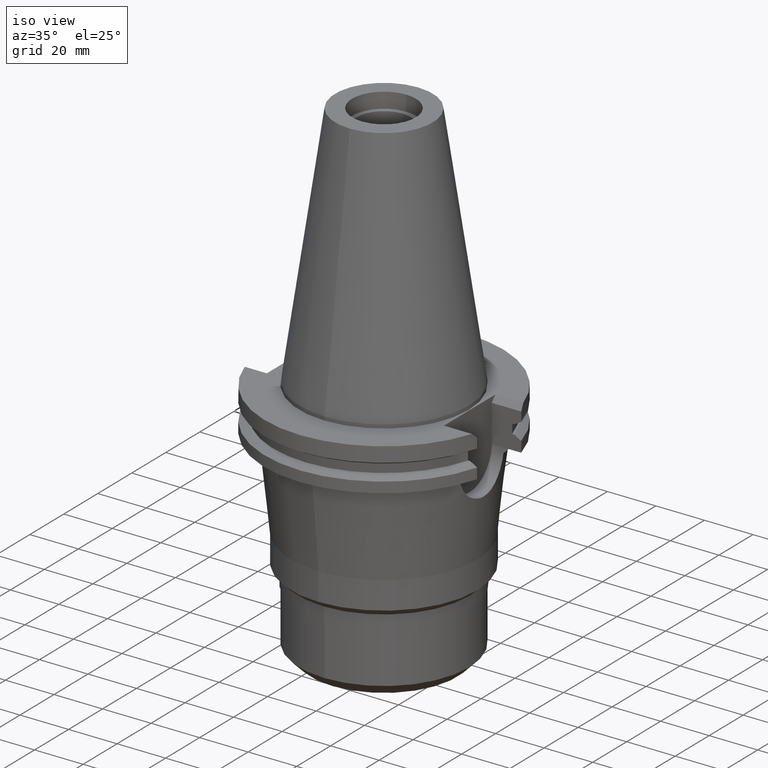
[diagram: clean part render]
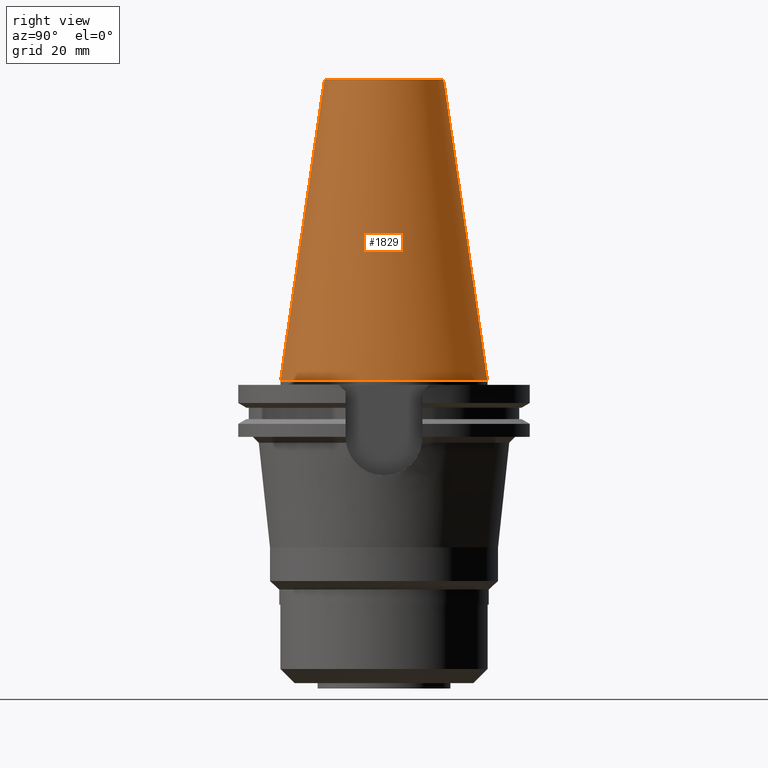
[diagram: tour spotlight — one face highlighted and labeled with its STEP entity id]
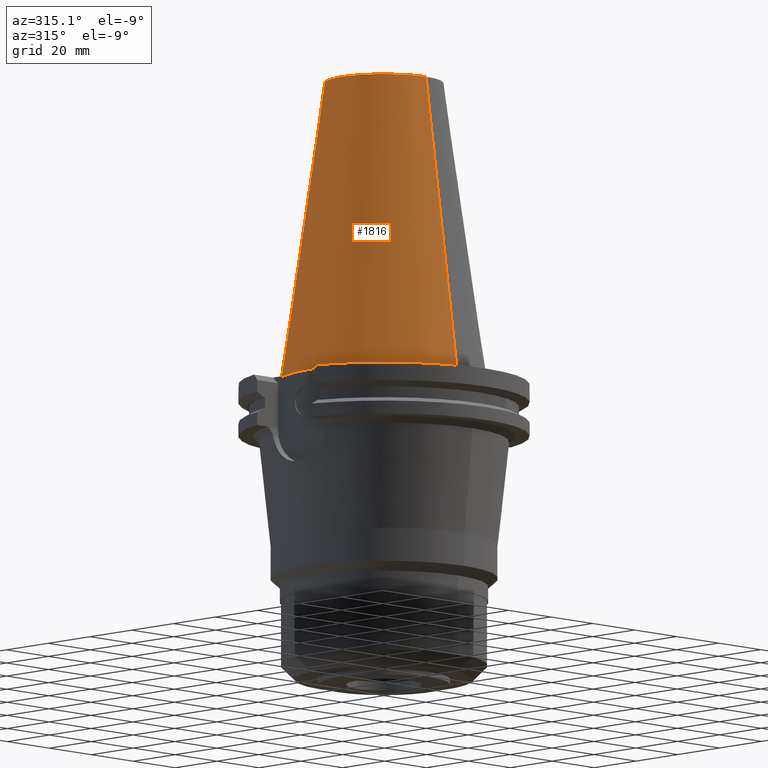
[diagram: tour spotlight — one face highlighted and labeled with its STEP entity id]
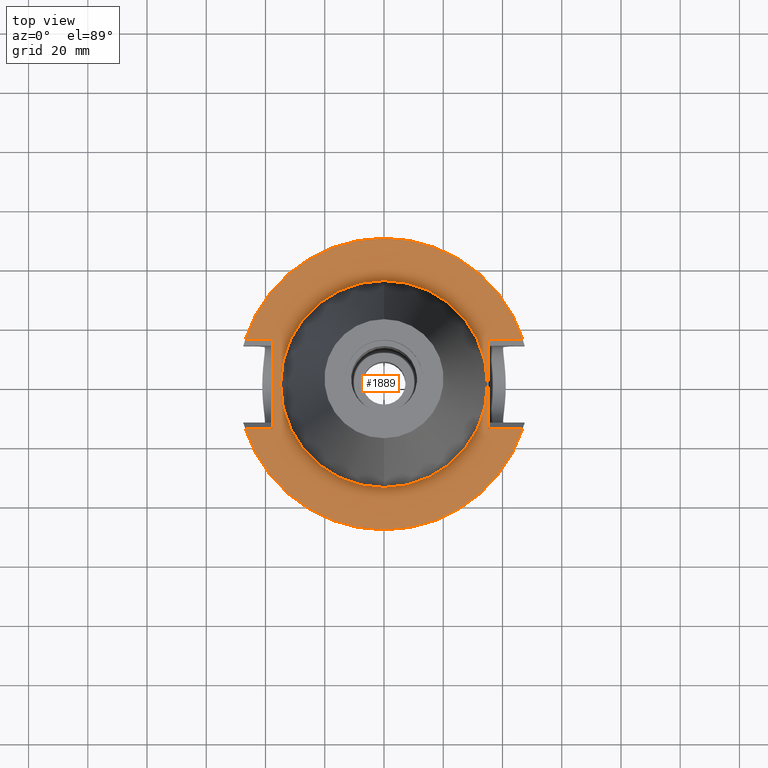
[diagram: tour spotlight — one face highlighted and labeled with its STEP entity id]
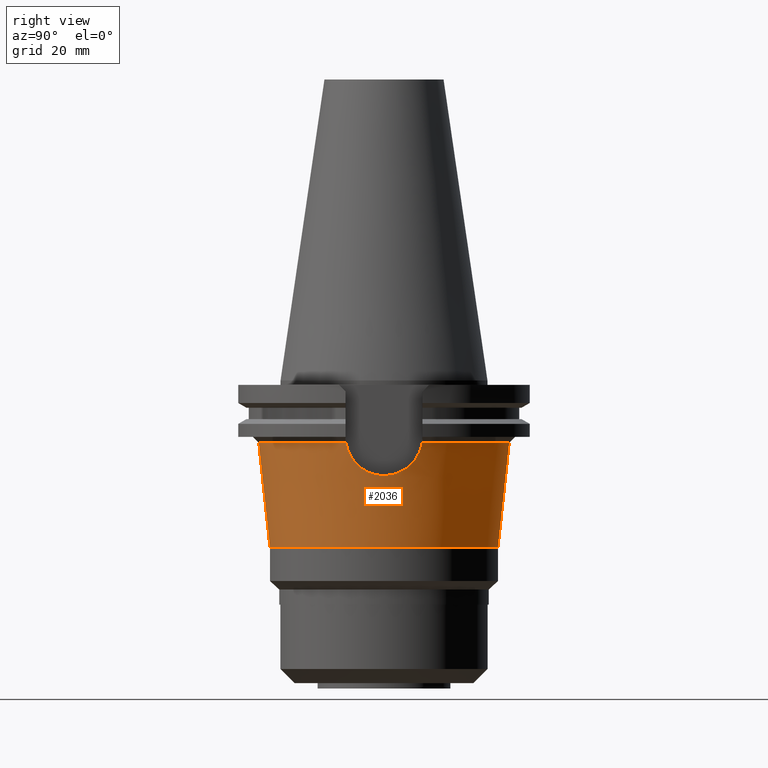
[diagram: tour spotlight — one face highlighted and labeled with its STEP entity id]
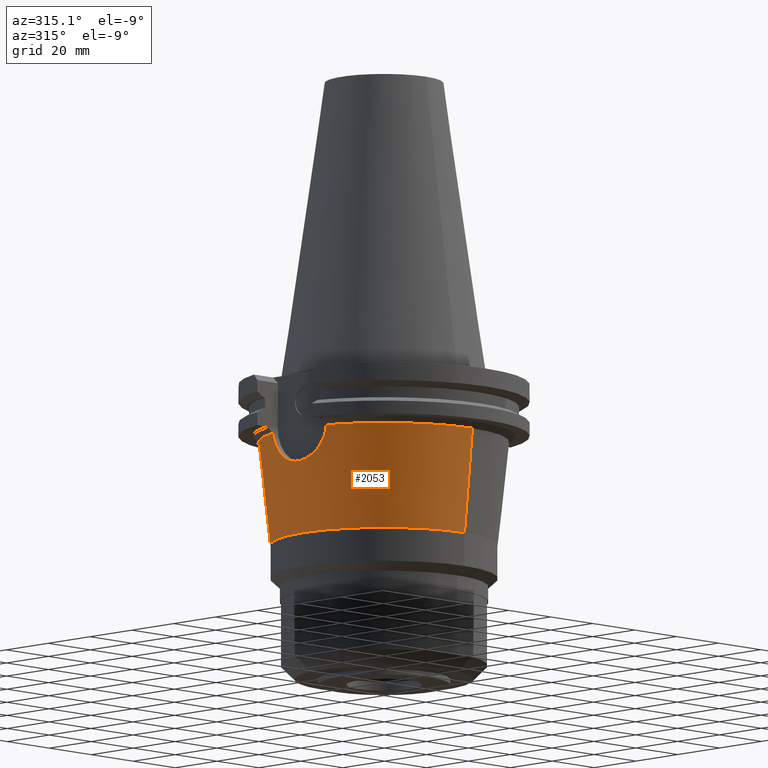
[diagram: tour spotlight — one face highlighted and labeled with its STEP entity id]
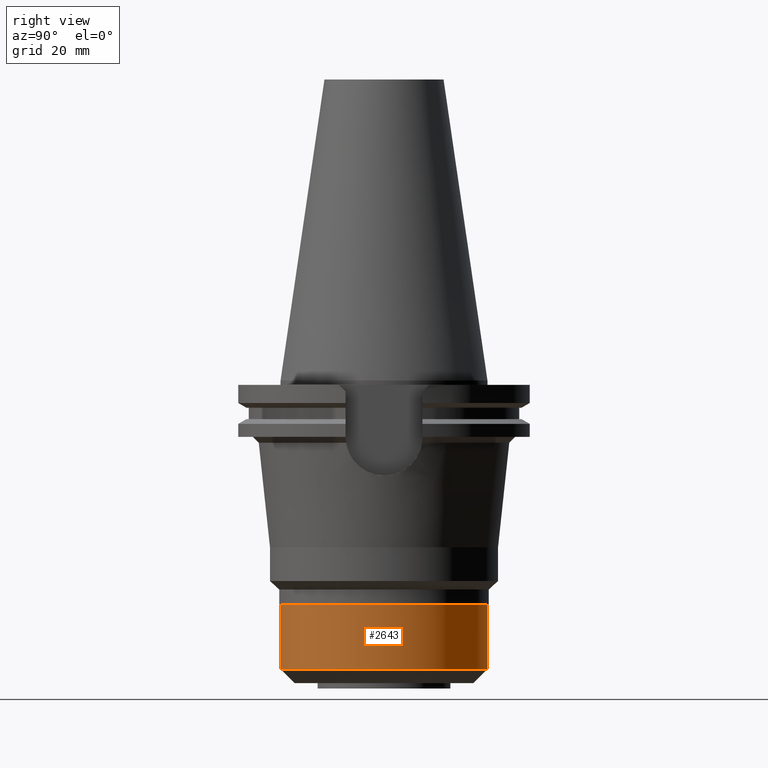
[diagram: tour spotlight — one face highlighted and labeled with its STEP entity id]
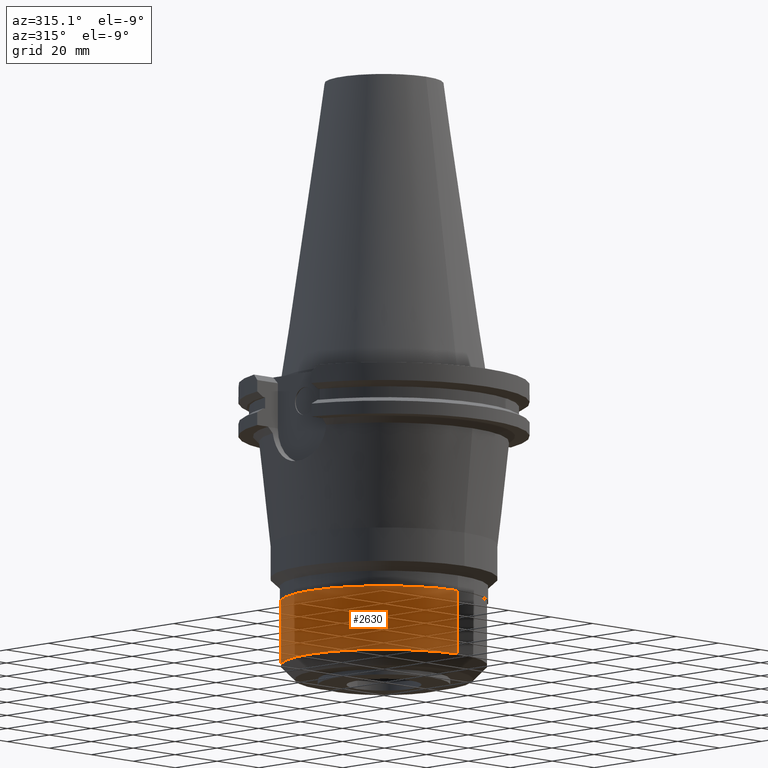
[diagram: tour spotlight — one face highlighted and labeled with its STEP entity id]
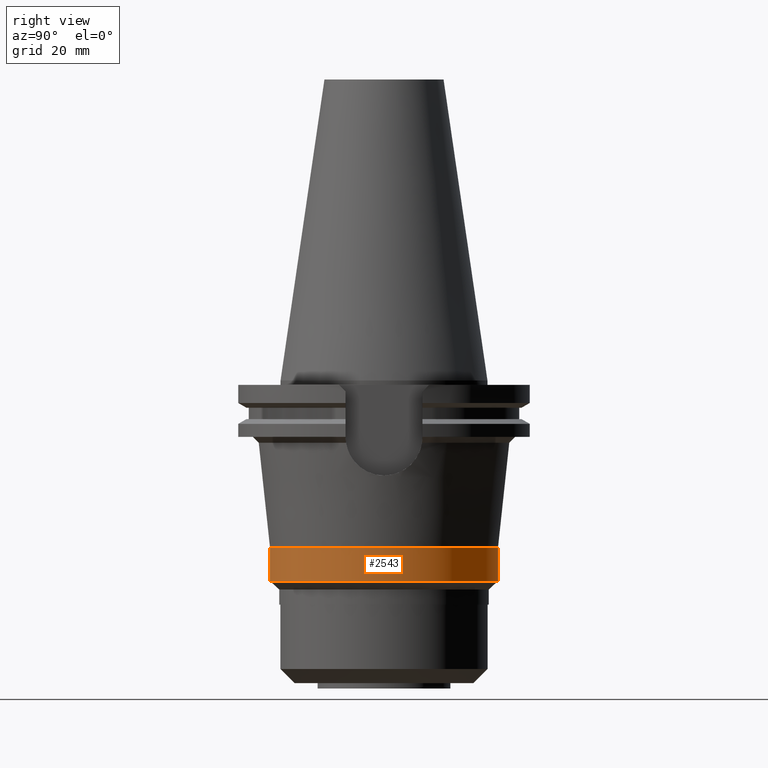
[diagram: tour spotlight — one face highlighted and labeled with its STEP entity id]
A machine part: a face-by-face anatomy tour. The part has 72 B-rep faces; the first image is the clean iso view, then the 8 largest visible faces are spotlighted one at a time (largest first), each with its STEP entity span.

Face 1 — right view, entity #1829. In plain terms, the highlighted conical surface has half-angle 8.297 deg.
Definition (entity closure, byte-faithful):
#26=CARTESIAN_POINT('',(0.E0,1.846767373114E-14,1.016E2));
#27=DIRECTION('',(0.E0,0.E0,-1.E0));
#28=DIRECTION('',(0.E0,1.E0,0.E0));
#29=AXIS2_PLACEMENT_3D('',#26,#27,#28);
#50=DIRECTION('',(0.E0,-1.443069799457E-1,-9.895329683942E-1));
#51=VECTOR('',#50,1.026746993229E2);
#52=CARTESIAN_POINT('',(0.E0,-2.010832422387E1,1.016E2));
#53=LINE('',#52,#51);
#65=DIRECTION('',(0.E0,1.443069799457E-1,-9.895329683942E-1));
#66=VECTOR('',#65,1.026746993229E2);
#67=CARTESIAN_POINT('',(0.E0,2.010832422387E1,1.016E2));
#68=LINE('',#67,#66);
#72=CARTESIAN_POINT('',(0.E0,1.846767373114E-14,7.389644451905E-13));
#73=DIRECTION('',(0.E0,0.E0,-1.E0));
#74=DIRECTION('',(0.E0,1.E0,0.E0));
#75=AXIS2_PLACEMENT_3D('',#72,#73,#74);
#1541=CARTESIAN_POINT('',(0.E0,-2.010832422388E1,1.016E2));
#1542=CARTESIAN_POINT('',(0.E0,2.010832422388E1,1.016E2));
#1543=VERTEX_POINT('',#1541);
#1544=VERTEX_POINT('',#1542);
#1723=CARTESIAN_POINT('',(0.E0,3.4925E1,4.760636329593E-13));
#1724=VERTEX_POINT('',#1723);
#1725=CARTESIAN_POINT('',(0.E0,-3.4925E1,4.760636329593E-13));
#1726=VERTEX_POINT('',#1725);
#1817=CARTESIAN_POINT('',(0.E0,1.846767373114E-14,5.08E1));
#1818=DIRECTION('',(0.E0,0.E0,-1.E0));
#1819=DIRECTION('',(0.E0,-1.E0,0.E0));
#1820=AXIS2_PLACEMENT_3D('',#1817,#1818,#1819);
#1821=CONICAL_SURFACE('',#1820,2.751666211194E1,8.29715E0);
#1822=ORIENTED_EDGE('',*,*,#1807,.T.);
#1824=ORIENTED_EDGE('',*,*,#1823,.T.);
#1825=ORIENTED_EDGE('',*,*,#1810,.F.);
#1826=ORIENTED_EDGE('',*,*,#1791,.F.);
#1827=EDGE_LOOP('',(#1822,#1824,#1825,#1826));
#1828=FACE_OUTER_BOUND('',#1827,.F.);
#30=CIRCLE('',#29,2.010832422388E1);
#76=CIRCLE('',#75,3.4925E1);
#1791=EDGE_CURVE('',#1544,#1543,#30,.T.);
#1807=EDGE_CURVE('',#1544,#1724,#68,.T.);
#1810=EDGE_CURVE('',#1543,#1726,#53,.T.);
#1823=EDGE_CURVE('',#1724,#1726,#76,.T.);
#1829=ADVANCED_FACE('',(#1828),#1821,.T.);

Face 2 — auxiliary view, entity #1816. In plain terms, the highlighted conical surface has half-angle 8.297 deg.
Definition (entity closure, byte-faithful):
#17=CARTESIAN_POINT('',(0.E0,1.846767373114E-14,1.016E2));
#18=DIRECTION('',(0.E0,0.E0,-1.E0));
#19=DIRECTION('',(0.E0,-1.E0,0.E0));
#20=AXIS2_PLACEMENT_3D('',#17,#18,#19);
#50=DIRECTION('',(0.E0,-1.443069799457E-1,-9.895329683942E-1));
#51=VECTOR('',#50,1.026746993229E2);
#52=CARTESIAN_POINT('',(0.E0,-2.010832422387E1,1.016E2));
#53=LINE('',#52,#51);
#57=CARTESIAN_POINT('',(0.E0,1.846767373114E-14,7.389644451905E-13));
#58=DIRECTION('',(0.E0,0.E0,-1.E0));
#59=DIRECTION('',(0.E0,-1.E0,0.E0));
#60=AXIS2_PLACEMENT_3D('',#57,#58,#59);
#65=DIRECTION('',(0.E0,1.443069799457E-1,-9.895329683942E-1));
#66=VECTOR('',#65,1.026746993229E2);
#67=CARTESIAN_POINT('',(0.E0,2.010832422387E1,1.016E2));
#68=LINE('',#67,#66);
#1541=CARTESIAN_POINT('',(0.E0,-2.010832422388E1,1.016E2));
#1542=CARTESIAN_POINT('',(0.E0,2.010832422388E1,1.016E2));
#1543=VERTEX_POINT('',#1541);
#1544=VERTEX_POINT('',#1542);
#1723=CARTESIAN_POINT('',(0.E0,3.4925E1,4.760636329593E-13));
#1724=VERTEX_POINT('',#1723);
#1725=CARTESIAN_POINT('',(0.E0,-3.4925E1,4.760636329593E-13));
#1726=VERTEX_POINT('',#1725);
#1802=CARTESIAN_POINT('',(0.E0,1.846767373114E-14,5.08E1));
#1803=DIRECTION('',(0.E0,0.E0,-1.E0));
#1804=DIRECTION('',(0.E0,-1.E0,0.E0));
#1805=AXIS2_PLACEMENT_3D('',#1802,#1803,#1804);
#1806=CONICAL_SURFACE('',#1805,2.751666211194E1,8.29715E0);
#1808=ORIENTED_EDGE('',*,*,#1807,.F.);
#1809=ORIENTED_EDGE('',*,*,#1789,.F.);
#1811=ORIENTED_EDGE('',*,*,#1810,.T.);
#1813=ORIENTED_EDGE('',*,*,#1812,.T.);
#1814=EDGE_LOOP('',(#1808,#1809,#1811,#1813));
#1815=FACE_OUTER_BOUND('',#1814,.F.);
#21=CIRCLE('',#20,2.010832422388E1);
#61=CIRCLE('',#60,3.4925E1);
#1789=EDGE_CURVE('',#1543,#1544,#21,.T.);
#1807=EDGE_CURVE('',#1544,#1724,#68,.T.);
#1810=EDGE_CURVE('',#1543,#1726,#53,.T.);
#1812=EDGE_CURVE('',#1726,#1724,#61,.T.);
#1816=ADVANCED_FACE('',(#1815),#1806,.T.);

Face 3 — top view, entity #1889. In plain terms, the highlighted planar face has unit normal (0, 0, -1).
Definition (entity closure, byte-faithful):
#94=DIRECTION('',(0.E0,-1.E0,0.E0));
#95=VECTOR('',#94,3.031E1);
#96=CARTESIAN_POINT('',(3.527E1,1.5155E1,-1.5E0));
#97=LINE('',#96,#95);
#101=DIRECTION('',(1.E0,0.E0,0.E0));
#102=VECTOR('',#101,1.155089417397E1);
#103=CARTESIAN_POINT('',(3.527E1,-1.5155E1,-1.5E0));
#104=LINE('',#103,#102);
#108=CARTESIAN_POINT('',(0.E0,2.594781638033E-14,-1.5E0));
#109=DIRECTION('',(0.E0,0.E0,-1.E0));
#110=DIRECTION('',(9.514024724200E-1,-3.079502159004E-1,0.E0));
#111=AXIS2_PLACEMENT_3D('',#108,#109,#110);
#116=CARTESIAN_POINT('',(0.E0,2.594781638033E-14,-1.5E0));
#117=DIRECTION('',(0.E0,0.E0,-1.E0));
#118=DIRECTION('',(0.E0,-1.E0,0.E0));
#119=AXIS2_PLACEMENT_3D('',#116,#117,#118);
#124=DIRECTION('',(0.E0,1.E0,0.E0));
#125=VECTOR('',#124,3.031E1);
#126=CARTESIAN_POINT('',(-3.768E1,-1.5155E1,-1.5E0));
#127=LINE('',#126,#125);
#131=DIRECTION('',(-1.E0,-1.204850662821E-14,0.E0));
#132=VECTOR('',#131,9.140894173969E0);
#133=CARTESIAN_POINT('',(-3.768E1,1.5155E1,-1.5E0));
#134=LINE('',#133,#132);
#138=CARTESIAN_POINT('',(0.E0,2.594781638033E-14,-1.5E0));
#139=DIRECTION('',(0.E0,0.E0,-1.E0));
#140=DIRECTION('',(-9.514024724200E-1,3.079502159004E-1,0.E0));
#141=AXIS2_PLACEMENT_3D('',#138,#139,#140);
#146=CARTESIAN_POINT('',(0.E0,2.594781638033E-14,-1.5E0));
#147=DIRECTION('',(0.E0,0.E0,-1.E0));
#148=DIRECTION('',(0.E0,1.E0,0.E0));
#149=AXIS2_PLACEMENT_3D('',#146,#147,#148);
#154=CARTESIAN_POINT('',(0.E0,2.594781638033E-14,-1.5E0));
#155=DIRECTION('',(0.E0,0.E0,1.E0));
#156=DIRECTION('',(0.E0,-1.E0,0.E0));
#157=AXIS2_PLACEMENT_3D('',#154,#155,#156);
#162=CARTESIAN_POINT('',(0.E0,2.594781638033E-14,-1.5E0));
#163=DIRECTION('',(0.E0,0.E0,1.E0));
#164=DIRECTION('',(0.E0,1.E0,0.E0));
#165=AXIS2_PLACEMENT_3D('',#162,#163,#164);
#221=DIRECTION('',(1.E0,0.E0,0.E0));
#222=VECTOR('',#221,1.155089417397E1);
#223=CARTESIAN_POINT('',(3.527E1,1.5155E1,-1.5E0));
#224=LINE('',#223,#222);
#715=DIRECTION('',(-1.E0,1.204850662821E-14,0.E0));
#716=VECTOR('',#715,9.140894173969E0);
#717=CARTESIAN_POINT('',(-3.768E1,-1.5155E1,-1.5E0));
#718=LINE('',#717,#716);
#1693=CARTESIAN_POINT('',(-3.768E1,-1.5155E1,-1.5E0));
#1694=CARTESIAN_POINT('',(-3.768E1,1.5155E1,-1.5E0));
#1695=VERTEX_POINT('',#1693);
#1696=VERTEX_POINT('',#1694);
#1703=CARTESIAN_POINT('',(3.527E1,1.5155E1,-1.5E0));
#1704=CARTESIAN_POINT('',(3.527E1,-1.5155E1,-1.5E0));
#1705=VERTEX_POINT('',#1703);
#1706=VERTEX_POINT('',#1704);
#1707=CARTESIAN_POINT('',(4.682089417397E1,-1.5155E1,-1.5E0));
#1708=VERTEX_POINT('',#1707);
#1709=CARTESIAN_POINT('',(0.E0,-4.92125E1,-1.5E0));
#1710=CARTESIAN_POINT('',(-4.682089417397E1,-1.5155E1,-1.5E0));
#1711=VERTEX_POINT('',#1709);
#1712=VERTEX_POINT('',#1710);
#1713=CARTESIAN_POINT('',(-4.682089417397E1,1.5155E1,-1.5E0));
#1714=VERTEX_POINT('',#1713);
#1715=CARTESIAN_POINT('',(-1.598721155460E-14,4.92125E1,-1.5E0));
#1716=CARTESIAN_POINT('',(4.682089417397E1,1.5155E1,-1.5E0));
#1717=VERTEX_POINT('',#1715);
#1718=VERTEX_POINT('',#1716);
#1719=CARTESIAN_POINT('',(0.E0,-3.4925E1,-1.5E0));
#1720=CARTESIAN_POINT('',(0.E0,3.4925E1,-1.5E0));
#1721=VERTEX_POINT('',#1719);
#1722=VERTEX_POINT('',#1720);
#1858=CARTESIAN_POINT('',(0.E0,1.206277097160E-14,-1.5E0));
#1859=DIRECTION('',(0.E0,0.E0,-1.E0));
#1860=DIRECTION('',(0.E0,-1.E0,0.E0));
#1861=AXIS2_PLACEMENT_3D('',#1858,#1859,#1860);
#1862=PLANE('',#1861);
#1864=ORIENTED_EDGE('',*,*,#1863,.T.);
#1866=ORIENTED_EDGE('',*,*,#1865,.T.);
#1868=ORIENTED_EDGE('',*,*,#1867,.T.);
#1870=ORIENTED_EDGE('',*,*,#1869,.T.);
#1872=ORIENTED_EDGE('',*,*,#1871,.F.);
#1874=ORIENTED_EDGE('',*,*,#1873,.T.);
#1876=ORIENTED_EDGE('',*,*,#1875,.T.);
#1878=ORIENTED_EDGE('',*,*,#1877,.T.);
#1880=ORIENTED_EDGE('',*,*,#1879,.T.);
#1882=ORIENTED_EDGE('',*,*,#1881,.F.);
#1883=EDGE_LOOP('',(#1864,#1866,#1868,#1870,#1872,#1874,#1876,#1878,#1880,
#1882));
#1884=FACE_OUTER_BOUND('',#1883,.F.);
#1885=ORIENTED_EDGE('',*,*,#1837,.T.);
#1886=ORIENTED_EDGE('',*,*,#1853,.T.);
#1887=EDGE_LOOP('',(#1885,#1886));
#1888=FACE_BOUND('',#1887,.F.);
#112=CIRCLE('',#111,4.92125E1);
#120=CIRCLE('',#119,4.92125E1);
#142=CIRCLE('',#141,4.92125E1);
#150=CIRCLE('',#149,4.92125E1);
#158=CIRCLE('',#157,3.4925E1);
#166=CIRCLE('',#165,3.4925E1);
#1837=EDGE_CURVE('',#1721,#1722,#158,.T.);
#1853=EDGE_CURVE('',#1722,#1721,#166,.T.);
#1863=EDGE_CURVE('',#1705,#1706,#97,.T.);
#1865=EDGE_CURVE('',#1706,#1708,#104,.T.);
#1867=EDGE_CURVE('',#1708,#1711,#112,.T.);
#1869=EDGE_CURVE('',#1711,#1712,#120,.T.);
#1871=EDGE_CURVE('',#1695,#1712,#718,.T.);
#1873=EDGE_CURVE('',#1695,#1696,#127,.T.);
#1875=EDGE_CURVE('',#1696,#1714,#134,.T.);
#1877=EDGE_CURVE('',#1714,#1717,#142,.T.);
#1879=EDGE_CURVE('',#1717,#1718,#150,.T.);
#1881=EDGE_CURVE('',#1705,#1718,#224,.T.);
#1889=ADVANCED_FACE('',(#1884,#1888),#1862,.F.);

Face 4 — right view, entity #2036. In plain terms, the highlighted conical surface has half-angle 6.129 deg.
Definition (entity closure, byte-faithful):
#273=CARTESIAN_POINT('',(4.029682526004E1,1.281416209637E1,-2.104999438595E1));
#315=CARTESIAN_POINT('',(4.029680950050E1,-1.281421487180E1,-2.104998169903E1));
#316=CARTESIAN_POINT('',(4.024140480832E1,-1.268828893715E1,-2.189705996718E1));
#317=CARTESIAN_POINT('',(4.018606026407E1,-1.226770772311E1,-2.357411174932E1));
#318=CARTESIAN_POINT('',(4.025664100744E1,-1.112754419576E1,-2.594961980257E1));
#319=CARTESIAN_POINT('',(4.043662982094E1,-9.546181690792E0,-2.803222300451E1));
#320=CARTESIAN_POINT('',(4.067040872694E1,-7.560825672625E0,-2.977642735591E1));
#321=CARTESIAN_POINT('',(4.089801221663E1,-5.227810074584E0,-3.109922073398E1));
#322=CARTESIAN_POINT('',(4.105985103807E1,-2.668257015169E0,-3.191630206542E1));
#323=CARTESIAN_POINT('',(4.109862321210E1,-8.893048037665E-1,-3.21E1));
#324=CARTESIAN_POINT('',(4.109862321210E1,0.E0,-3.21E1));
#329=CARTESIAN_POINT('',(4.109862321210E1,0.E0,-3.21E1));
#330=CARTESIAN_POINT('',(4.109862321210E1,8.775567886595E-1,-3.21E1));
#331=CARTESIAN_POINT('',(4.106089443948E1,2.638427198625E0,-3.192122150027E1));
#332=CARTESIAN_POINT('',(4.090100714146E1,5.191111268388E0,-3.111500071249E1));
#333=CARTESIAN_POINT('',(4.067380024940E1,7.530643795421E0,-2.979845580400E1));
#334=CARTESIAN_POINT('',(4.043876600201E1,9.528506807317E0,-2.805236131693E1));
#335=CARTESIAN_POINT('',(4.025719531294E1,1.112074698342E1,-2.596238346954E1));
#336=CARTESIAN_POINT('',(4.018588498807E1,1.226734902725E1,-2.357682023329E1));
#337=CARTESIAN_POINT('',(4.024140484556E1,1.268819599590E1,-2.189732553764E1));
#338=CARTESIAN_POINT('',(4.029682526004E1,1.281416209637E1,-2.104999438595E1));
#343=CARTESIAN_POINT('',(0.E0,0.E0,-2.105E1));
#344=DIRECTION('',(0.E0,0.E0,1.E0));
#345=DIRECTION('',(9.529773147311E-1,3.030416433559E-1,0.E0));
#346=AXIS2_PLACEMENT_3D('',#343,#344,#345);
#351=DIRECTION('',(0.E0,-1.067673373623E-1,-9.942840316894E-1));
#352=VECTOR('',#351,3.545264620222E1);
#353=CARTESIAN_POINT('',(0.E0,4.228518463746E1,-2.105E1));
#354=LINE('',#353,#352);
#358=CARTESIAN_POINT('',(0.E0,0.E0,-5.63E1));
#359=DIRECTION('',(0.E0,0.E0,-1.E0));
#360=DIRECTION('',(0.E0,1.E0,0.E0));
#361=AXIS2_PLACEMENT_3D('',#358,#359,#360);
#366=CARTESIAN_POINT('',(0.E0,0.E0,-2.105E1));
#367=DIRECTION('',(0.E0,0.E0,1.E0));
#368=DIRECTION('',(0.E0,-1.E0,0.E0));
#369=AXIS2_PLACEMENT_3D('',#366,#367,#368);
#395=DIRECTION('',(0.E0,1.067673373623E-1,-9.942840316894E-1));
#396=VECTOR('',#395,3.545264620222E1);
#397=CARTESIAN_POINT('',(0.E0,-4.228518463746E1,-2.105E1));
#398=LINE('',#397,#396);
#793=CARTESIAN_POINT('',(4.029680950050E1,-1.281421487180E1,-2.104998169903E1));
#1621=CARTESIAN_POINT('',(0.E0,3.85E1,-5.63E1));
#1622=VERTEX_POINT('',#1621);
#1623=CARTESIAN_POINT('',(0.E0,-3.85E1,-5.63E1));
#1624=VERTEX_POINT('',#1623);
#1627=CARTESIAN_POINT('',(0.E0,-4.228518463746E1,-2.105E1));
#1628=VERTEX_POINT('',#1627);
#1629=CARTESIAN_POINT('',(0.E0,4.228518463746E1,-2.105E1));
#1630=VERTEX_POINT('',#1629);
#1640=VERTEX_POINT('',#793);
#1644=VERTEX_POINT('',#273);
#1779=VERTEX_POINT('',#329);
#2018=CARTESIAN_POINT('',(0.E0,0.E0,-3.8675E1));
#2019=DIRECTION('',(0.E0,0.E0,1.E0));
#2020=DIRECTION('',(0.E0,1.E0,0.E0));
#2021=AXIS2_PLACEMENT_3D('',#2018,#2019,#2020);
#2022=CONICAL_SURFACE('',#2021,4.039259231873E1,6.129E0);
#2023=ORIENTED_EDGE('',*,*,#2005,.T.);
#2024=ORIENTED_EDGE('',*,*,#2003,.T.);
#2025=ORIENTED_EDGE('',*,*,#1993,.T.);
#2027=ORIENTED_EDGE('',*,*,#2026,.T.);
#2029=ORIENTED_EDGE('',*,*,#2028,.T.);
#2031=ORIENTED_EDGE('',*,*,#2030,.F.);
#2033=ORIENTED_EDGE('',*,*,#2032,.T.);
#2034=EDGE_LOOP('',(#2023,#2024,#2025,#2027,#2029,#2031,#2033));
#2035=FACE_OUTER_BOUND('',#2034,.F.);
#325=B_SPLINE_CURVE_WITH_KNOTS('',3,(#315,#316,#317,#318,#319,#320,#321,#322,
#323,#324),.UNSPECIFIED.,.F.,.F.,(4,1,1,1,1,1,1,4),(0.E0,1.428571428571E-1,
2.857142857143E-1,4.285714285714E-1,5.714285714286E-1,7.142857142857E-1,
8.571428571429E-1,1.E0),.UNSPECIFIED.);
#339=B_SPLINE_CURVE_WITH_KNOTS('',3,(#329,#330,#331,#332,#333,#334,#335,#336,
#337,#338),.UNSPECIFIED.,.F.,.F.,(4,1,1,1,1,1,1,4),(0.E0,1.428571428571E-1,
2.857142857143E-1,4.285714285714E-1,5.714285714286E-1,7.142857142857E-1,
8.571428571429E-1,1.E0),.UNSPECIFIED.);
#347=CIRCLE('',#346,4.228518463746E1);
#362=CIRCLE('',#361,3.85E1);
#370=CIRCLE('',#369,4.228518463746E1);
#1993=EDGE_CURVE('',#1644,#1630,#347,.T.);
#2003=EDGE_CURVE('',#1779,#1644,#339,.T.);
#2005=EDGE_CURVE('',#1640,#1779,#325,.T.);
#2026=EDGE_CURVE('',#1630,#1622,#354,.T.);
#2028=EDGE_CURVE('',#1622,#1624,#362,.T.);
#2030=EDGE_CURVE('',#1628,#1624,#398,.T.);
#2032=EDGE_CURVE('',#1628,#1640,#370,.T.);
#2036=ADVANCED_FACE('',(#2035),#2022,.T.);

Face 5 — auxiliary view, entity #2053. In plain terms, the highlighted conical surface has half-angle 6.129 deg.
Definition (entity closure, byte-faithful):
#293=CARTESIAN_POINT('',(0.E0,0.E0,-2.105E1));
#294=DIRECTION('',(0.E0,0.E0,-1.E0));
#295=DIRECTION('',(-9.529764053217E-1,3.030445031677E-1,0.E0));
#296=AXIS2_PLACEMENT_3D('',#293,#294,#295);
#351=DIRECTION('',(0.E0,-1.067673373623E-1,-9.942840316894E-1));
#352=VECTOR('',#351,3.545264620222E1);
#353=CARTESIAN_POINT('',(0.E0,4.228518463746E1,-2.105E1));
#354=LINE('',#353,#352);
#374=CARTESIAN_POINT('',(-4.029680950321E1,1.281421487244E1,-2.104998169619E1));
#375=CARTESIAN_POINT('',(-4.024160195737E1,1.268873702062E1,-2.189404580570E1));
#376=CARTESIAN_POINT('',(-4.018664690862E1,1.226824910100E1,-2.356579906336E1));
#377=CARTESIAN_POINT('',(-4.025448559192E1,1.115004114182E1,-2.591382576274E1));
#378=CARTESIAN_POINT('',(-4.043577801608E1,9.552272073412E0,-2.802519545744E1));
#379=CARTESIAN_POINT('',(-4.066518337720E1,7.607001328400E0,-2.974029427745E1));
#380=CARTESIAN_POINT('',(-4.089347351330E1,5.282503013097E0,-3.107566498853E1));
#381=CARTESIAN_POINT('',(-4.105697060054E1,2.731641140517E0,-3.190219390489E1));
#382=CARTESIAN_POINT('',(-4.111783390540E1,7.294876475320E-2,
-3.219114368614E1));
#383=CARTESIAN_POINT('',(-4.106317227806E1,-2.581917551683E0,
-3.193197739271E1));
#384=CARTESIAN_POINT('',(-4.090674049019E1,-5.118437882698E0,
-3.114555857602E1));
#385=CARTESIAN_POINT('',(-4.068095819678E1,-7.466360051150E0,
-2.984256076894E1));
#386=CARTESIAN_POINT('',(-4.044536331085E1,-9.473134615739E0,
-2.811568297275E1));
#387=CARTESIAN_POINT('',(-4.025653364310E1,-1.112316354728E1,
-2.596629500649E1));
#388=CARTESIAN_POINT('',(-4.018591820072E1,-1.227006958868E1,
-2.356792708743E1));
#389=CARTESIAN_POINT('',(-4.024183364560E1,-1.268917062424E1,
-2.189076955030E1));
#390=CARTESIAN_POINT('',(-4.029682526025E1,-1.281416209726E1,
-2.104999438516E1));
#395=DIRECTION('',(0.E0,1.067673373623E-1,-9.942840316894E-1));
#396=VECTOR('',#395,3.545264620222E1);
#397=CARTESIAN_POINT('',(0.E0,-4.228518463746E1,-2.105E1));
#398=LINE('',#397,#396);
#402=CARTESIAN_POINT('',(0.E0,0.E0,-5.63E1));
#403=DIRECTION('',(0.E0,0.E0,-1.E0));
#404=DIRECTION('',(0.E0,-1.E0,0.E0));
#405=AXIS2_PLACEMENT_3D('',#402,#403,#404);
#798=CARTESIAN_POINT('',(0.E0,0.E0,-2.105E1));
#799=DIRECTION('',(0.E0,0.E0,-1.E0));
#800=DIRECTION('',(0.E0,-1.E0,0.E0));
#801=AXIS2_PLACEMENT_3D('',#798,#799,#800);
#1621=CARTESIAN_POINT('',(0.E0,3.85E1,-5.63E1));
#1622=VERTEX_POINT('',#1621);
#1623=CARTESIAN_POINT('',(0.E0,-3.85E1,-5.63E1));
#1624=VERTEX_POINT('',#1623);
#1625=VERTEX_POINT('',#374);
#1626=VERTEX_POINT('',#390);
#1627=CARTESIAN_POINT('',(0.E0,-4.228518463746E1,-2.105E1));
#1628=VERTEX_POINT('',#1627);
#1629=CARTESIAN_POINT('',(0.E0,4.228518463746E1,-2.105E1));
#1630=VERTEX_POINT('',#1629);
#2037=CARTESIAN_POINT('',(0.E0,0.E0,-3.8675E1));
#2038=DIRECTION('',(0.E0,0.E0,1.E0));
#2039=DIRECTION('',(0.E0,1.E0,0.E0));
#2040=AXIS2_PLACEMENT_3D('',#2037,#2038,#2039);
#2041=CONICAL_SURFACE('',#2040,4.039259231873E1,6.129E0);
#2043=ORIENTED_EDGE('',*,*,#2042,.T.);
#2045=ORIENTED_EDGE('',*,*,#2044,.F.);
#2046=ORIENTED_EDGE('',*,*,#2030,.T.);
#2048=ORIENTED_EDGE('',*,*,#2047,.T.);
#2049=ORIENTED_EDGE('',*,*,#2026,.F.);
#2050=ORIENTED_EDGE('',*,*,#1991,.F.);
#2051=EDGE_LOOP('',(#2043,#2045,#2046,#2048,#2049,#2050));
#2052=FACE_OUTER_BOUND('',#2051,.F.);
#297=CIRCLE('',#296,4.228518463746E1);
#391=B_SPLINE_CURVE_WITH_KNOTS('',3,(#374,#375,#376,#377,#378,#379,#380,#381,
#382,#383,#384,#385,#386,#387,#388,#389,#390),.UNSPECIFIED.,.F.,.F.,(4,1,1,1,1,
1,1,1,1,1,1,1,1,1,4),(0.E0,7.142857142857E-2,1.428571428571E-1,
2.142857142857E-1,2.857142857143E-1,3.571428571429E-1,4.285714285714E-1,5.E-1,
5.714285714286E-1,6.428571428571E-1,7.142857142857E-1,7.857142857143E-1,
8.571428571429E-1,9.285714285714E-1,1.E0),.UNSPECIFIED.);
#406=CIRCLE('',#405,3.85E1);
#802=CIRCLE('',#801,4.228518463746E1);
#1991=EDGE_CURVE('',#1625,#1630,#297,.T.);
#2026=EDGE_CURVE('',#1630,#1622,#354,.T.);
#2030=EDGE_CURVE('',#1628,#1624,#398,.T.);
#2042=EDGE_CURVE('',#1625,#1626,#391,.T.);
#2044=EDGE_CURVE('',#1628,#1626,#802,.T.);
#2047=EDGE_CURVE('',#1624,#1622,#406,.T.);
#2053=ADVANCED_FACE('',(#2052),#2041,.T.);

Face 6 — right view, entity #2643. In plain terms, the highlighted cylindrical surface (partial cylindrical patch) has radius 35 mm, axis along (0, 0, -1).
Definition (entity closure, byte-faithful):
#1183=CARTESIAN_POINT('',(0.E0,2.594781638033E-14,-7.57E1));
#1184=DIRECTION('',(0.E0,0.E0,-1.E0));
#1185=DIRECTION('',(0.E0,1.E0,0.E0));
#1186=AXIS2_PLACEMENT_3D('',#1183,#1184,#1185);
#1191=DIRECTION('',(0.E0,0.E0,-1.E0));
#1192=VECTOR('',#1191,2.17E1);
#1193=CARTESIAN_POINT('',(0.E0,-3.5E1,-7.57E1));
#1194=LINE('',#1193,#1192);
#1198=DIRECTION('',(0.E0,0.E0,-1.E0));
#1199=VECTOR('',#1198,2.17E1);
#1200=CARTESIAN_POINT('',(0.E0,3.5E1,-7.57E1));
#1201=LINE('',#1200,#1199);
#1212=CARTESIAN_POINT('',(0.E0,0.E0,-9.74E1));
#1213=DIRECTION('',(0.E0,0.E0,1.E0));
#1214=DIRECTION('',(0.E0,-1.E0,0.E0));
#1215=AXIS2_PLACEMENT_3D('',#1212,#1213,#1214);
#1601=CARTESIAN_POINT('',(0.E0,3.5E1,-9.74E1));
#1602=VERTEX_POINT('',#1601);
#1603=CARTESIAN_POINT('',(0.E0,-3.5E1,-9.74E1));
#1604=VERTEX_POINT('',#1603);
#1605=CARTESIAN_POINT('',(0.E0,3.5E1,-7.57E1));
#1606=VERTEX_POINT('',#1605);
#1607=CARTESIAN_POINT('',(0.E0,-3.5E1,-7.57E1));
#1608=VERTEX_POINT('',#1607);
#2631=CARTESIAN_POINT('',(0.E0,2.594781638033E-14,1.1188E2));
#2632=DIRECTION('',(0.E0,0.E0,-1.E0));
#2633=DIRECTION('',(0.E0,-1.E0,0.E0));
#2634=AXIS2_PLACEMENT_3D('',#2631,#2632,#2633);
#2635=CYLINDRICAL_SURFACE('',#2634,3.5E1);
#2636=ORIENTED_EDGE('',*,*,#2621,.T.);
#2638=ORIENTED_EDGE('',*,*,#2637,.F.);
#2639=ORIENTED_EDGE('',*,*,#2624,.F.);
#2640=ORIENTED_EDGE('',*,*,#2611,.F.);
#2641=EDGE_LOOP('',(#2636,#2638,#2639,#2640));
#2642=FACE_OUTER_BOUND('',#2641,.F.);
#1187=CIRCLE('',#1186,3.5E1);
#1216=CIRCLE('',#1215,3.5E1);
#2611=EDGE_CURVE('',#1606,#1608,#1187,.T.);
#2621=EDGE_CURVE('',#1606,#1602,#1201,.T.);
#2624=EDGE_CURVE('',#1608,#1604,#1194,.T.);
#2637=EDGE_CURVE('',#1604,#1602,#1216,.T.);
#2643=ADVANCED_FACE('',(#2642),#2635,.T.);

Face 7 — auxiliary view, entity #2630. In plain terms, the highlighted cylindrical surface (partial cylindrical patch) has radius 35 mm, axis along (0, 0, -1).
Definition (entity closure, byte-faithful):
#1175=CARTESIAN_POINT('',(0.E0,2.594781638033E-14,-7.57E1));
#1176=DIRECTION('',(0.E0,0.E0,-1.E0));
#1177=DIRECTION('',(0.E0,-1.E0,0.E0));
#1178=AXIS2_PLACEMENT_3D('',#1175,#1176,#1177);
#1191=DIRECTION('',(0.E0,0.E0,-1.E0));
#1192=VECTOR('',#1191,2.17E1);
#1193=CARTESIAN_POINT('',(0.E0,-3.5E1,-7.57E1));
#1194=LINE('',#1193,#1192);
#1198=DIRECTION('',(0.E0,0.E0,-1.E0));
#1199=VECTOR('',#1198,2.17E1);
#1200=CARTESIAN_POINT('',(0.E0,3.5E1,-7.57E1));
#1201=LINE('',#1200,#1199);
#1220=CARTESIAN_POINT('',(0.E0,0.E0,-9.74E1));
#1221=DIRECTION('',(0.E0,0.E0,1.E0));
#1222=DIRECTION('',(0.E0,1.E0,0.E0));
#1223=AXIS2_PLACEMENT_3D('',#1220,#1221,#1222);
#1601=CARTESIAN_POINT('',(0.E0,3.5E1,-9.74E1));
#1602=VERTEX_POINT('',#1601);
#1603=CARTESIAN_POINT('',(0.E0,-3.5E1,-9.74E1));
#1604=VERTEX_POINT('',#1603);
#1605=CARTESIAN_POINT('',(0.E0,3.5E1,-7.57E1));
#1606=VERTEX_POINT('',#1605);
#1607=CARTESIAN_POINT('',(0.E0,-3.5E1,-7.57E1));
#1608=VERTEX_POINT('',#1607);
#2616=CARTESIAN_POINT('',(0.E0,2.594781638033E-14,1.1188E2));
#2617=DIRECTION('',(0.E0,0.E0,-1.E0));
#2618=DIRECTION('',(0.E0,-1.E0,0.E0));
#2619=AXIS2_PLACEMENT_3D('',#2616,#2617,#2618);
#2620=CYLINDRICAL_SURFACE('',#2619,3.5E1);
#2622=ORIENTED_EDGE('',*,*,#2621,.F.);
#2623=ORIENTED_EDGE('',*,*,#2609,.F.);
#2625=ORIENTED_EDGE('',*,*,#2624,.T.);
#2627=ORIENTED_EDGE('',*,*,#2626,.F.);
#2628=EDGE_LOOP('',(#2622,#2623,#2625,#2627));
#2629=FACE_OUTER_BOUND('',#2628,.F.);
#1179=CIRCLE('',#1178,3.5E1);
#1224=CIRCLE('',#1223,3.5E1);
#2609=EDGE_CURVE('',#1608,#1606,#1179,.T.);
#2621=EDGE_CURVE('',#1606,#1602,#1201,.T.);
#2624=EDGE_CURVE('',#1608,#1604,#1194,.T.);
#2626=EDGE_CURVE('',#1602,#1604,#1224,.T.);
#2630=ADVANCED_FACE('',(#2629),#2620,.T.);

Face 8 — right view, entity #2543. In plain terms, the highlighted cylindrical surface (partial cylindrical patch) has radius 38.5 mm, axis along (0, 0, -1).
Definition (entity closure, byte-faithful):
#358=CARTESIAN_POINT('',(0.E0,0.E0,-5.63E1));
#359=DIRECTION('',(0.E0,0.E0,-1.E0));
#360=DIRECTION('',(0.E0,1.E0,0.E0));
#361=AXIS2_PLACEMENT_3D('',#358,#359,#360);
#1085=DIRECTION('',(0.E0,-1.121909582779E-14,-1.E0));
#1086=VECTOR('',#1085,1.14E1);
#1087=CARTESIAN_POINT('',(0.E0,-3.85E1,-5.63E1));
#1088=LINE('',#1087,#1086);
#1092=DIRECTION('',(0.E0,1.121909582779E-14,-1.E0));
#1093=VECTOR('',#1092,1.14E1);
#1094=CARTESIAN_POINT('',(0.E0,3.85E1,-5.63E1));
#1095=LINE('',#1094,#1093);
#1114=CARTESIAN_POINT('',(0.E0,0.E0,-6.77E1));
#1115=DIRECTION('',(0.E0,0.E0,1.E0));
#1116=DIRECTION('',(0.E0,-1.E0,0.E0));
#1117=AXIS2_PLACEMENT_3D('',#1114,#1115,#1116);
#1617=CARTESIAN_POINT('',(0.E0,3.85E1,-6.77E1));
#1618=VERTEX_POINT('',#1617);
#1619=CARTESIAN_POINT('',(0.E0,-3.85E1,-6.77E1));
#1620=VERTEX_POINT('',#1619);
#1621=CARTESIAN_POINT('',(0.E0,3.85E1,-5.63E1));
#1622=VERTEX_POINT('',#1621);
#1623=CARTESIAN_POINT('',(0.E0,-3.85E1,-5.63E1));
#1624=VERTEX_POINT('',#1623);
#2531=CARTESIAN_POINT('',(0.E0,2.594781638033E-14,1.1188E2));
#2532=DIRECTION('',(0.E0,0.E0,-1.E0));
#2533=DIRECTION('',(0.E0,-1.E0,0.E0));
#2534=AXIS2_PLACEMENT_3D('',#2531,#2532,#2533);
#2535=CYLINDRICAL_SURFACE('',#2534,3.85E1);
#2536=ORIENTED_EDGE('',*,*,#2521,.T.);
#2538=ORIENTED_EDGE('',*,*,#2537,.F.);
#2539=ORIENTED_EDGE('',*,*,#2524,.F.);
#2540=ORIENTED_EDGE('',*,*,#2028,.F.);
#2541=EDGE_LOOP('',(#2536,#2538,#2539,#2540));
#2542=FACE_OUTER_BOUND('',#2541,.F.);
#362=CIRCLE('',#361,3.85E1);
#1118=CIRCLE('',#1117,3.85E1);
#2028=EDGE_CURVE('',#1622,#1624,#362,.T.);
#2521=EDGE_CURVE('',#1622,#1618,#1095,.T.);
#2524=EDGE_CURVE('',#1624,#1620,#1088,.T.);
#2537=EDGE_CURVE('',#1620,#1618,#1118,.T.);
#2543=ADVANCED_FACE('',(#2542),#2535,.T.);